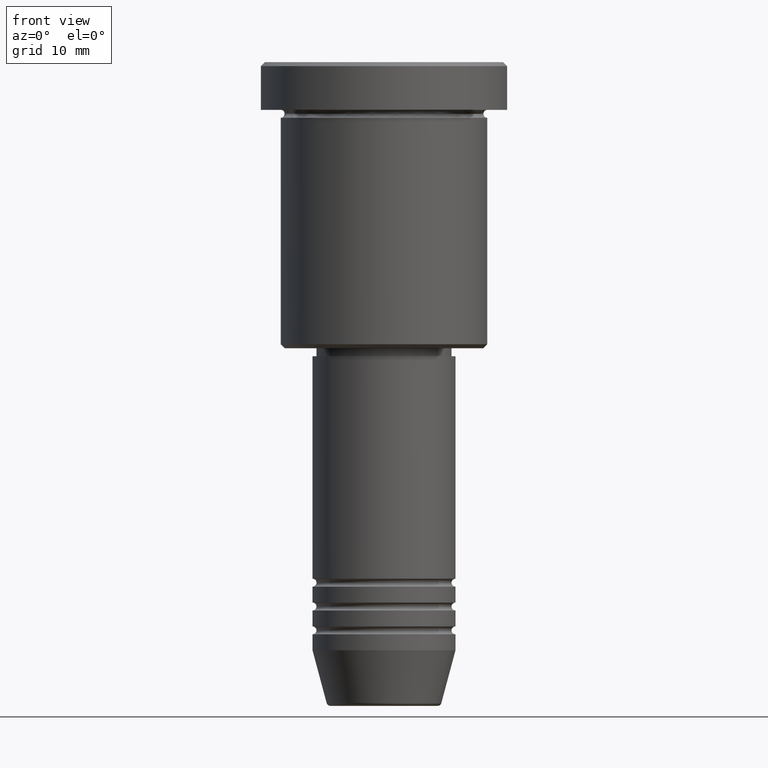
[diagram: clean part render]
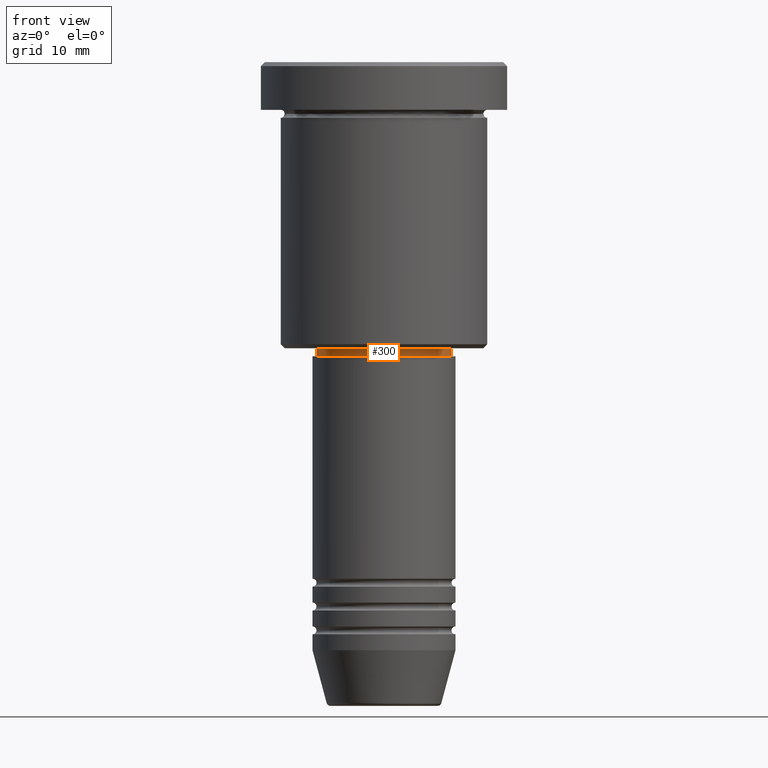
[diagram: same view with one face highlighted and labeled with its STEP entity id]
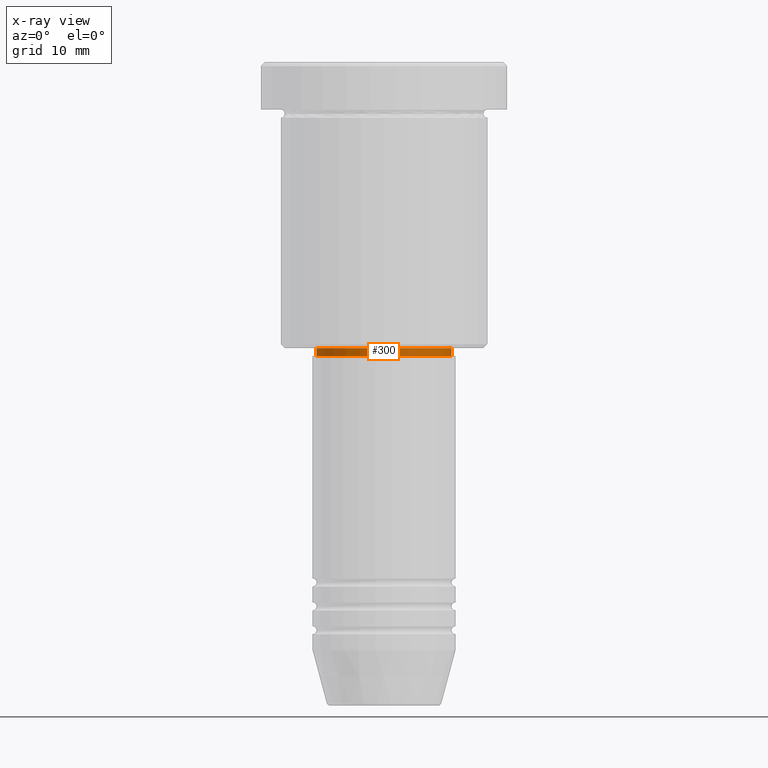
[diagram: x-ray of the same camera — body ghosted, the highlighted face saturated]
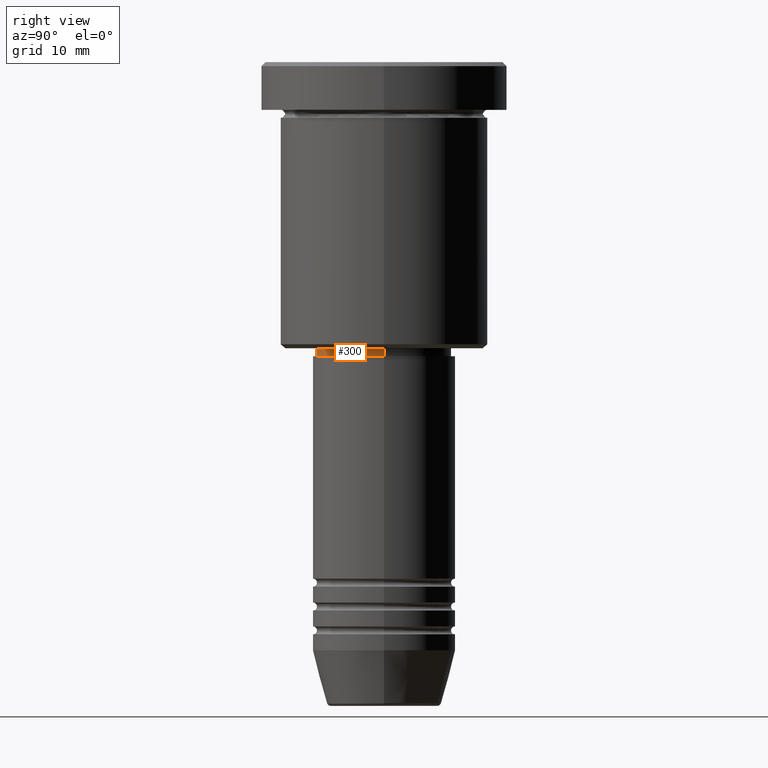
[diagram: same view with one face highlighted and labeled with its STEP entity id]
A machine part, front view. The second image highlights one B-rep face of the part: STEP entity #300.
The next image is the same camera in x-ray: the body ghosted, the highlighted face saturated — about 0% of this face is hidden behind the body in this view.
A second angle (right view) of the same face is appended — the face is thin or edge-on in the first view.
In plain terms, the highlighted cylindrical surface (partial cylindrical patch) has radius 8.5 mm, axis along (-0, -0, 1).
Its self-contained STEP definition (entity closure, byte-faithful):
#7 = DIRECTION ( 'NONE',  ( -0.000000000000000000, -0.000000000000000000, 1.000000000000000000 ) ) ;
#72 = LINE ( 'NONE', #527, #686 ) ;
#184 = VERTEX_POINT ( 'NONE', #659 ) ;
#209 = EDGE_CURVE ( 'NONE', #781, #513, #652, .T. ) ;
#212 = DIRECTION ( 'NONE',  ( -0.000000000000000000, -0.000000000000000000, 1.000000000000000000 ) ) ;
#251 = CIRCLE ( 'NONE', #604, 8.499999999999998224 ) ;
#253 = EDGE_CURVE ( 'NONE', #513, #184, #251, .T. ) ;
#262 = ORIENTED_EDGE ( 'NONE', *, *, #253, .F. ) ;
#264 = CARTESIAN_POINT ( 'NONE',  ( -8.499999999999998224, 1.040949779275249943E-15, -36.00000000000000711 ) ) ;
#269 = DIRECTION ( 'NONE',  ( 1.000000000000000000, 0.000000000000000000, 0.000000000000000000 ) ) ;
#300 = ADVANCED_FACE ( 'NONE', ( #741 ), #1103, .T. ) ;
#373 = DIRECTION ( 'NONE',  ( 1.000000000000000000, 0.000000000000000000, 0.000000000000000000 ) ) ;
#385 = CARTESIAN_POINT ( 'NONE',  ( -8.499999999999998224, 1.040949779275249943E-15, 0.000000000000000000 ) ) ;
#474 = EDGE_CURVE ( 'NONE', #781, #705, #1020, .T. ) ;
#495 = DIRECTION ( 'NONE',  ( 1.000000000000000000, 0.000000000000000000, 0.000000000000000000 ) ) ;
#510 = EDGE_CURVE ( 'NONE', #705, #184, #72, .T. ) ;
#513 = VERTEX_POINT ( 'NONE', #264 ) ;
#527 = CARTESIAN_POINT ( 'NONE',  ( 8.499999999999998224, 0.000000000000000000, 0.000000000000000000 ) ) ;
#557 = ORIENTED_EDGE ( 'NONE', *, *, #474, .T. ) ;
#604 = AXIS2_PLACEMENT_3D ( 'NONE', #821, #7, #269 ) ;
#648 = AXIS2_PLACEMENT_3D ( 'NONE', #884, #694, #495 ) ;
#652 = LINE ( 'NONE', #385, #1039 ) ;
#659 = CARTESIAN_POINT ( 'NONE',  ( 8.499999999999998224, 0.000000000000000000, -36.00000000000000711 ) ) ;
#666 = EDGE_LOOP ( 'NONE', ( #963, #557, #682, #262 ) ) ;
#682 = ORIENTED_EDGE ( 'NONE', *, *, #510, .T. ) ;
#686 = VECTOR ( 'NONE', #1094, 1000.000000000000000 ) ;
#694 = DIRECTION ( 'NONE',  ( -0.000000000000000000, -0.000000000000000000, 1.000000000000000000 ) ) ;
#705 = VERTEX_POINT ( 'NONE', #843 ) ;
#741 = FACE_OUTER_BOUND ( 'NONE', #666, .T. ) ;
#781 = VERTEX_POINT ( 'NONE', #947 ) ;
#821 = CARTESIAN_POINT ( 'NONE',  ( 0.000000000000000000, 0.000000000000000000, -36.00000000000000711 ) ) ;
#843 = CARTESIAN_POINT ( 'NONE',  ( 8.499999999999998224, 0.000000000000000000, -37.00000000000000711 ) ) ;
#884 = CARTESIAN_POINT ( 'NONE',  ( 0.000000000000000000, 0.000000000000000000, -37.00000000000000711 ) ) ;
#947 = CARTESIAN_POINT ( 'NONE',  ( -8.499999999999998224, 1.040949779275249943E-15, -37.00000000000000711 ) ) ;
#960 = AXIS2_PLACEMENT_3D ( 'NONE', #986, #1032, #373 ) ;
#963 = ORIENTED_EDGE ( 'NONE', *, *, #209, .F. ) ;
#986 = CARTESIAN_POINT ( 'NONE',  ( 0.000000000000000000, 0.000000000000000000, 0.000000000000000000 ) ) ;
#1020 = CIRCLE ( 'NONE', #648, 8.499999999999998224 ) ;
#1032 = DIRECTION ( 'NONE',  ( -0.000000000000000000, -0.000000000000000000, 1.000000000000000000 ) ) ;
#1039 = VECTOR ( 'NONE', #212, 1000.000000000000000 ) ;
#1094 = DIRECTION ( 'NONE',  ( -0.000000000000000000, -0.000000000000000000, 1.000000000000000000 ) ) ;
#1103 = CYLINDRICAL_SURFACE ( 'NONE', #960, 8.499999999999998224 ) ;